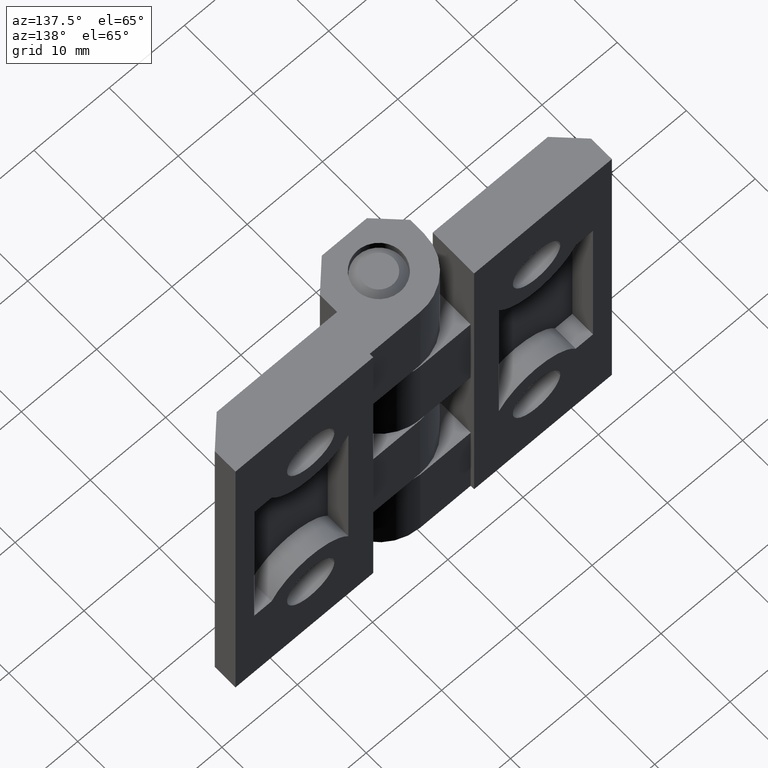
[diagram: clean part render]
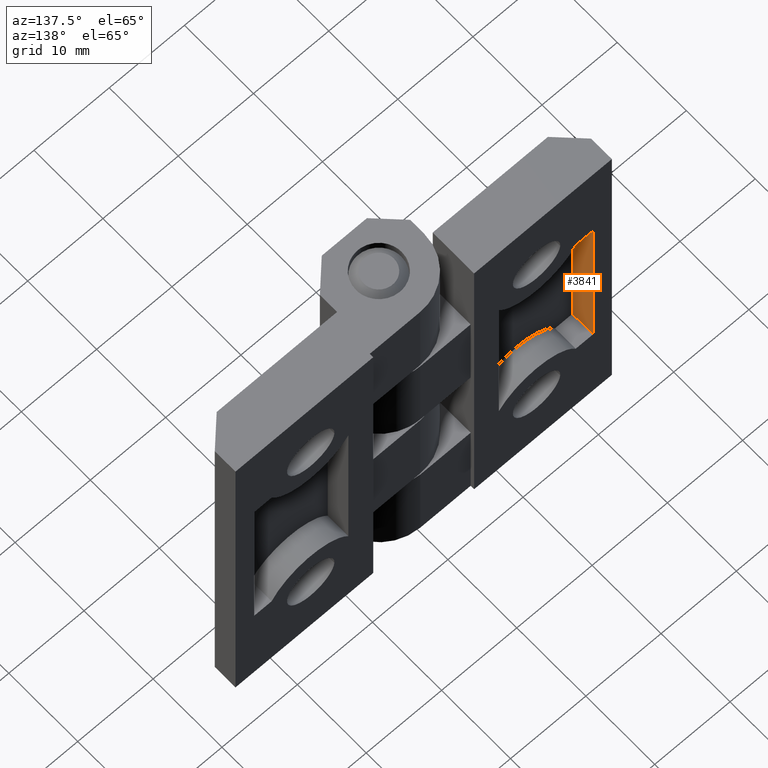
[diagram: same view with one face highlighted and labeled with its STEP entity id]
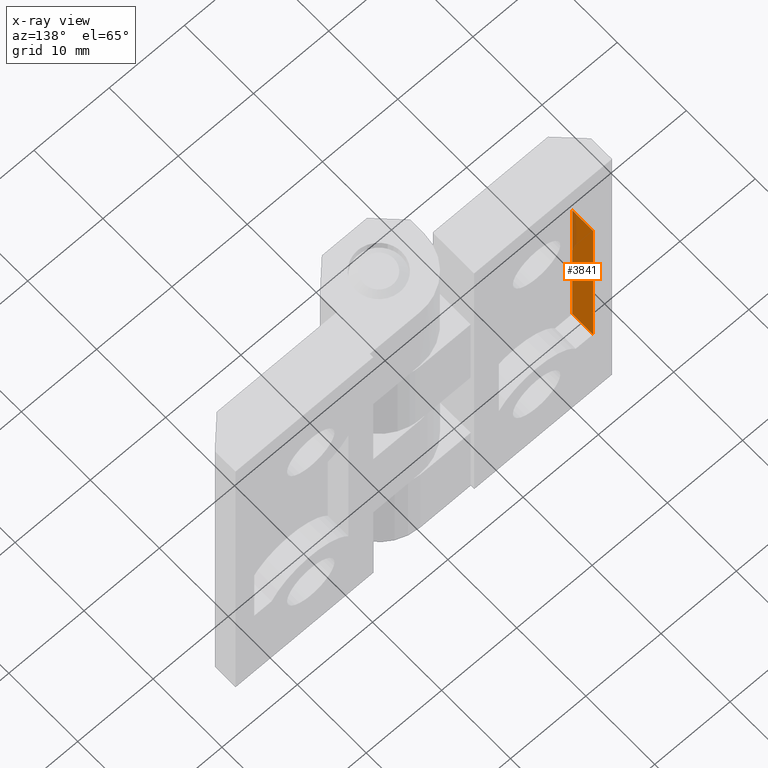
[diagram: x-ray of the same camera — body ghosted, the highlighted face saturated]
A machine part, auxiliary view. The second image highlights one B-rep face of the part: STEP entity #3841.
The next image is the same camera in x-ray: the body ghosted, the highlighted face saturated — about 6% of this face is hidden behind the body in this view.
In plain terms, the highlighted face is a freeform B-spline surface patch.
Its self-contained STEP definition (entity closure, byte-faithful):
#3770=CARTESIAN_POINT('',(-22.500002544093899,3.500000308733430,13.000000617466380));
#3771=VERTEX_POINT('',#3770);
#3777=CARTESIAN_POINT('',(-22.500002544093899,3.500000308733430,37.000001757405201));
#3778=VERTEX_POINT('',#3777);
#3779=CARTESIAN_POINT('',(-22.500002544093899,3.500000308733430,13.000000617466380));
#3780=CARTESIAN_POINT('',(-22.500002544093899,3.500000308733430,37.000001757405201));
#3781=QUASI_UNIFORM_CURVE('',1,(#3779,#3780),.UNSPECIFIED.,.F.,.U.);
#3782=EDGE_CURVE('',#3771,#3778,#3781,.T.);
#3797=CARTESIAN_POINT('',(-22.500002544093899,6.500000308733441,37.000001757405151));
#3798=VERTEX_POINT('',#3797);
#3812=CARTESIAN_POINT('',(-22.500002544093899,3.500000308733430,37.000001757405201));
#3813=CARTESIAN_POINT('',(-22.500002544093899,6.500000308733441,37.000001757405151));
#3814=QUASI_UNIFORM_CURVE('',1,(#3812,#3813),.UNSPECIFIED.,.F.,.U.);
#3815=EDGE_CURVE('',#3778,#3798,#3814,.T.);
#3820=CARTESIAN_POINT('',(-22.500002544093899,3.350150230062451,11.801200918082790));
#3821=CARTESIAN_POINT('',(-22.500002544093899,3.350150230062451,38.198800598481860));
#3822=CARTESIAN_POINT('',(-22.500002544093899,6.649850387404420,11.801200918082790));
#3823=CARTESIAN_POINT('',(-22.500002544093899,6.649850387404420,38.198800598481860));
#3824=B_SPLINE_SURFACE_WITH_KNOTS('',1,1,((#3820,#3822),(#3821,#3823)),.UNSPECIFIED.,.F.,.F.,.U.,(2,2),(2,2),(0.0,26.397599680399068),(0.0,3.299700157341969),.UNSPECIFIED.);
#3825=CARTESIAN_POINT('',(-22.500002544093899,6.500000308733430,13.000000617466380));
#3826=VERTEX_POINT('',#3825);
#3827=CARTESIAN_POINT('',(-22.500002544093899,6.500000308733430,13.000000617466380));
#3828=CARTESIAN_POINT('',(-22.500002544093899,6.500000308733441,37.000001757405151));
#3829=QUASI_UNIFORM_CURVE('',1,(#3827,#3828),.UNSPECIFIED.,.F.,.U.);
#3830=EDGE_CURVE('',#3826,#3798,#3829,.T.);
#3831=ORIENTED_EDGE('',*,*,#3830,.T.);
#3832=ORIENTED_EDGE('',*,*,#3815,.F.);
#3833=ORIENTED_EDGE('',*,*,#3782,.F.);
#3834=CARTESIAN_POINT('',(-22.500002544093899,3.500000308733430,13.000000617466380));
#3835=CARTESIAN_POINT('',(-22.500002544093899,6.500000308733430,13.000000617466380));
#3836=QUASI_UNIFORM_CURVE('',1,(#3834,#3835),.UNSPECIFIED.,.F.,.U.);
#3837=EDGE_CURVE('',#3771,#3826,#3836,.T.);
#3838=ORIENTED_EDGE('',*,*,#3837,.T.);
#3839=EDGE_LOOP('',(#3831,#3832,#3833,#3838));
#3840=FACE_OUTER_BOUND('',#3839,.T.);
#3841=ADVANCED_FACE('',(#3840),#3824,.F.);